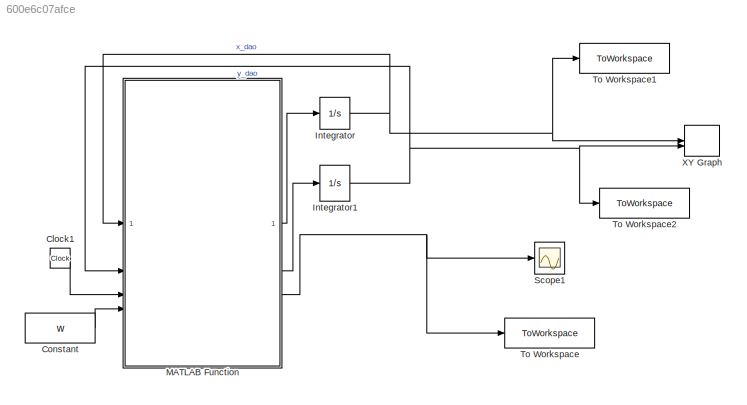
MODEL slx_600e6c07afce
KIND model
CONFIG AbsTol = auto
CONFIG EnableMultiTasking = off
CONFIG FixedStep = 1e-3
CONFIG MaxStep = auto
CONFIG MinStep = auto
CONFIG RelTol = 1e-3
CONFIG SampleTimeConstraint = Unconstrained
CONFIG SolverName = FixedStepAuto
CONFIG StartTime = 0.0
CONFIG StopTime = 50
BLOCK [Clock] Clock1
BLOCK [Constant] Constant
  Value = w
BLOCK [Integrator] Integrator
BLOCK [Integrator] Integrator1
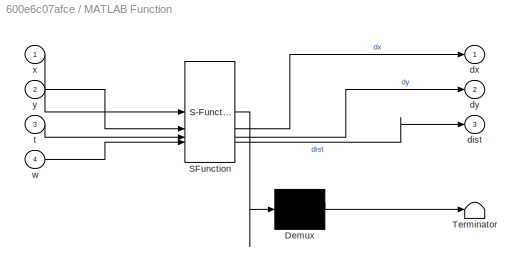
BLOCK [SubSystem] MATLAB Function
  ErrorFcn = Stateflow.Translate.translate
  PermitHierarchicalResolution = ExplicitOnly
  SFBlockType = MATLAB Function
  TreatAsAtomicUnit = on
BLOCK [Demux] MATLAB Function/ Demux 
  Outputs = 1
BLOCK [S-Function] MATLAB Function/ SFunction 
  EnableBusSupport = on
  FunctionName = sf_sfun
  PortCounts = [4 4]
  SFcnIsStateOwnerBlock = off
  SFunctionDeploymentMode = off
  Tag = Stateflow S-Function 2
BLOCK [Terminator] MATLAB Function/ Terminator 
BLOCK [Outport] MATLAB Function/dist
  Port = 3
BLOCK [Outport] MATLAB Function/dx
BLOCK [Outport] MATLAB Function/dy
  Port = 2
BLOCK [Inport] MATLAB Function/t
  Port = 3
BLOCK [Inport] MATLAB Function/w
  Port = 4
BLOCK [Inport] MATLAB Function/x
BLOCK [Inport] MATLAB Function/y
  Port = 2
BLOCK [Scope] Scope1
  Floating = off
  NumInputPorts = 1
  ScopeSpecificationString = Simulink.scopes.TimeScopeBlockCfg('CurrentConfiguration', extmgr.ConfigurationSet(extmgr.Configuration('Core','General UI',true),extmgr.Configuration('Core','Source UI',true),extmgr.Configuration('Sources','WiredSimulink',true,'DataLoggingVariableName','ScopeData1'),extmgr.Configuration('Visuals','Time Domain',true,'SerializedDisplays',{struct('MinYLimReal','-4.50693','MaxYLimReal','40.56245','YLa...<+1461ch>
BLOCK [ToWorkspace] To Workspace
  FixptAsFi = on
  MaxDataPoints = inf
  SampleTime = -1
  SaveFormat = Timeseries
  VariableName = dis
BLOCK [ToWorkspace] To Workspace1
  FixptAsFi = on
  MaxDataPoints = inf
  SampleTime = -1
  SaveFormat = Timeseries
  VariableName = x
BLOCK [ToWorkspace] To Workspace2
  FixptAsFi = on
  MaxDataPoints = inf
  SampleTime = -1
  SaveFormat = Timeseries
  VariableName = y
BLOCK [Record] XY Graph
  CompatibilityTag = XY
  FileSettingsInternal = {"entries":[{"content":{"excelSettings":{"content":{},"type":"Streamout.ExcelSettings"}},"type":"Streamout.FileSettingStorage","uuid":""}],"packageUris":["http:\/\/schema.mathworks.com\/mf0\/streamout_blocks\/R2020a"],"version":"1.0"}
  Layout = [1 1]
  SignalsInternal = {"entries":[{"content":{"signals":[{"content":{"blockPath":[],"dimensions":[1],"domain":"","lineColor":"#a2142f","plots":[1],"port":1,"sid":[""],"signalID":6282,"signalName":"x_dao"},"type":"RecordBlkView.Signal","uuid":""},{"content":{"blockPath":[],"dimensions":[1],"domain":"","lineColor":"#139fff","plots":[1],"port":2,"sid":[""],"signalID":6286,"signalName":"y_dao"},"type":"RecordBlkView.Signal...<+158ch>
  VisualizationBindings = {"xyplotplugin":{"info":[{"series":[{"bindingParametersList":[{"parameter":"X-Axis","signalID":6282,"signalName":"x_dao"},{"parameter":"Y-Axis","signalID":6286,"signalName":"y_dao"}],"seriesID":14509}],"subplotID":1}]}}
LINE Clock1:1 -> MATLAB Function:3
LINE Constant:1 -> MATLAB Function:4
NET Integrator1:1 -> MATLAB Function:2, To Workspace2:1, XY Graph:2
NET Integrator:1 -> MATLAB Function:1, To Workspace1:1, XY Graph:1
LINE MATLAB Function:1 -> Integrator:1
LINE MATLAB Function:2 -> Integrator1:1
NET MATLAB Function:3 -> Scope1:1, To Workspace:1
note: NET lines group one-source signal fan-out (src -> all destinations, sorted); 1:1 wires keep LINE
CHART MATLAB Function states=1 transitions=1
  STATE_LABEL 'eML_blk_kernel()'
  STATE_LABEL 'SCRIPT:\nfunction [dx,dy,dist] = fcn(x,y,t,w)\nx_fei = 10 + 20*cos(t);\ny_fei = 20 + 5*sin(t);\ndist = sqrt( (x_fei - x)^2 + (y_fei - y)^2 );\ndx = w * (x_fei - x) / dist;\ndy = w * (y_fei - y) / dist;\n\n'
CHART  states=0 transitions=0
